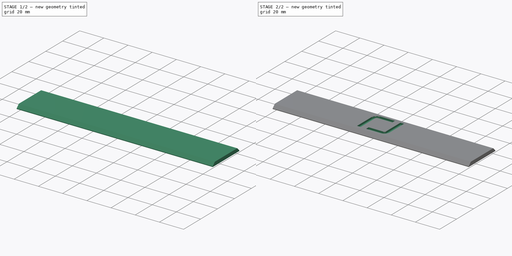
[diagram: build sequence overview — one tinted view per stage of 2, left to right]
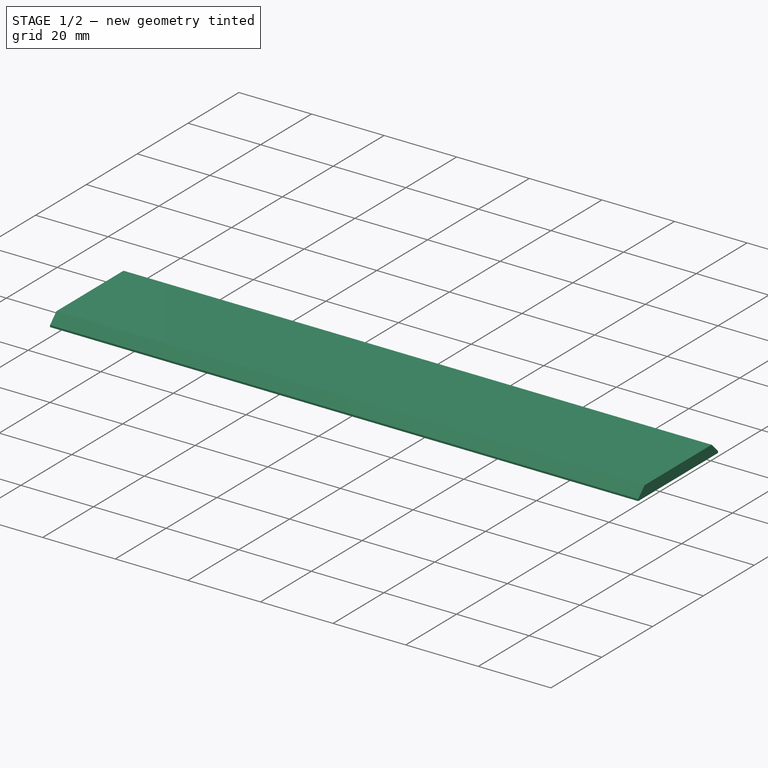
[diagram: stage 1 of 2 — iso view after this stage's code; geometry added in this stage tinted green]
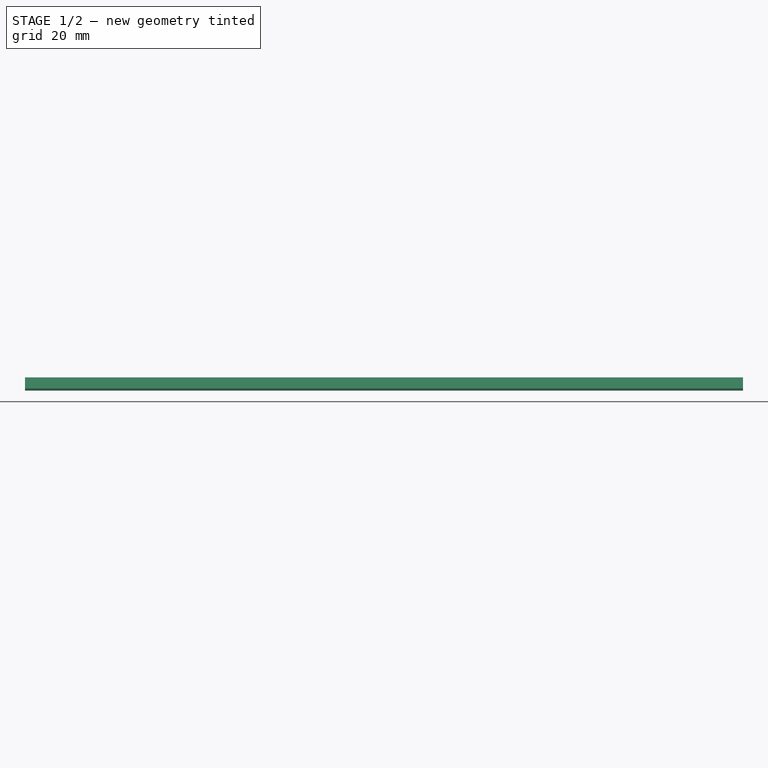
[diagram: stage 1 of 2 — front view after this stage's code; geometry added in this stage tinted green]
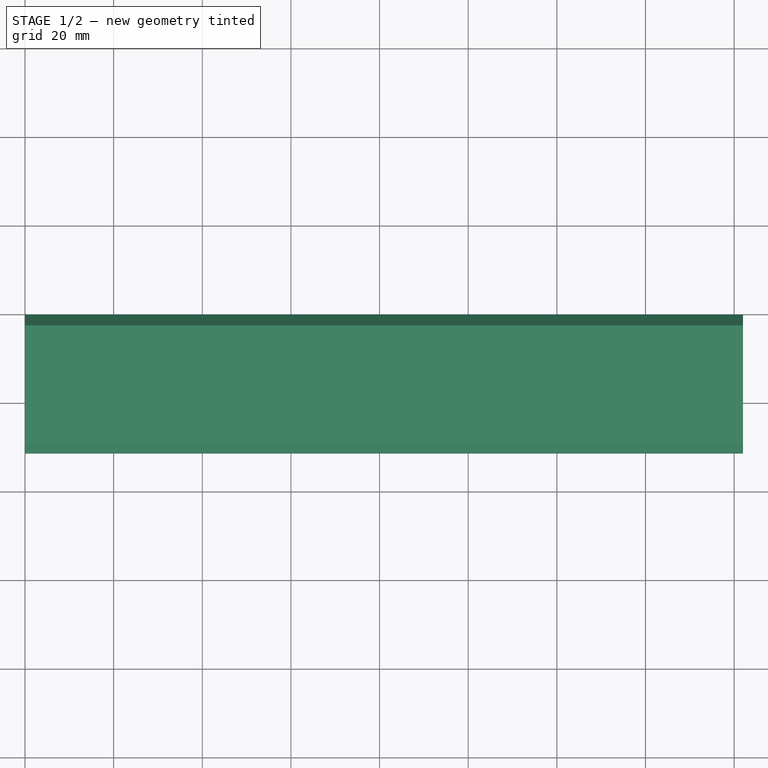
[diagram: stage 1 of 2 — top view after this stage's code; geometry added in this stage tinted green]
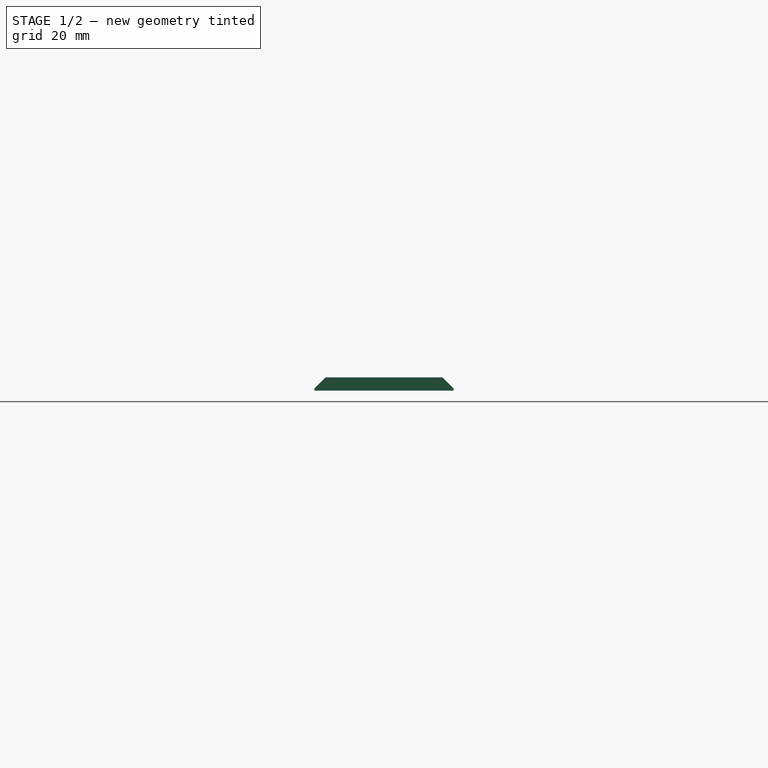
[diagram: stage 1 of 2 — right view after this stage's code; geometry added in this stage tinted green]
FCSTD DOCUMENT  (FreeCAD 0.20R29603 (Git))
Label: RJ
License: All rights reserved
LicenseURL: http://en.wikipedia.org/wiki/All_rights_reserved
objects: Part::Part2DObjectPython×2, PartDesign::Pocket×2, Spreadsheet::Sheet×1, Sketcher::SketchObject×1, PartDesign::Pad×1, PartDesign::Chamfer×1, PartDesign::Body×1, App::Part×1
note: 12 computed .brp shape members not serialized (recipe doc carries the construction recipe); baked Part::Feature solids carry a one-line shape summary decoded from their .brp

FEATURE [Spreadsheet::Sheet] Spreadsheet  label="params"
  cells = A1=length; B1(length)=162; A2=width; B2(width)=31.4; A3=height; B3(height)=3; A4=chamfer; B4(chamfer)=2.5
FEATURE [Sketcher::SketchObject] Sketch
  FullyConstrained = true
  MapMode = 2
  expr: Constraints[8] = <<params>>.length
  expr: Constraints[9] = <<params>>.width
  sketch-geometry (4):
    g0: LineSegment StartX=0 StartY=0 StartZ=0 EndX=162 EndY=0 EndZ=0
    g1: LineSegment StartX=162 StartY=0 StartZ=0 EndX=162 EndY=-31.4 EndZ=0
    g2: LineSegment StartX=162 StartY=-31.4 StartZ=0 EndX=0 EndY=-31.4 EndZ=0
    g3: LineSegment StartX=0 StartY=-31.4 StartZ=0 EndX=0 EndY=0 EndZ=0
  constraints (11):
    c: Coincident(g0,g1)
    c: Coincident(g1,g2)
    c: Coincident(g2,g3)
    c: Coincident(g3,g0)
    c: Horizontal(g0)
    c: Horizontal(g2)
    c: Vertical(g1)
    c: Vertical(g3)
    c: DistanceX(g0,g0) = 162
    c: DistanceY(g1,g0) = 31.4
    c: Coincident(g0,g-1)
FEATURE [PartDesign::Pad] Pad
  Direction = (0,0,1)
  Length = 3
  Length2 = 10
  Profile = -> Sketch
  ReferenceAxis = -> Sketch [N_Axis]
  Type = 0
  expr: Length = <<params>>.height
FEATURE [PartDesign::Chamfer] Chamfer
  Angle = 45
  Base = -> Pad [Edge10,Edge4]
  BaseFeature = -> Pad
  ChamferType = 0
  FlipDirection = false
  Size = 2.5
  Size2 = 1
  SupportTransform = false
  UseAllEdges = false
  expr: Size = <<params>>.chamfer
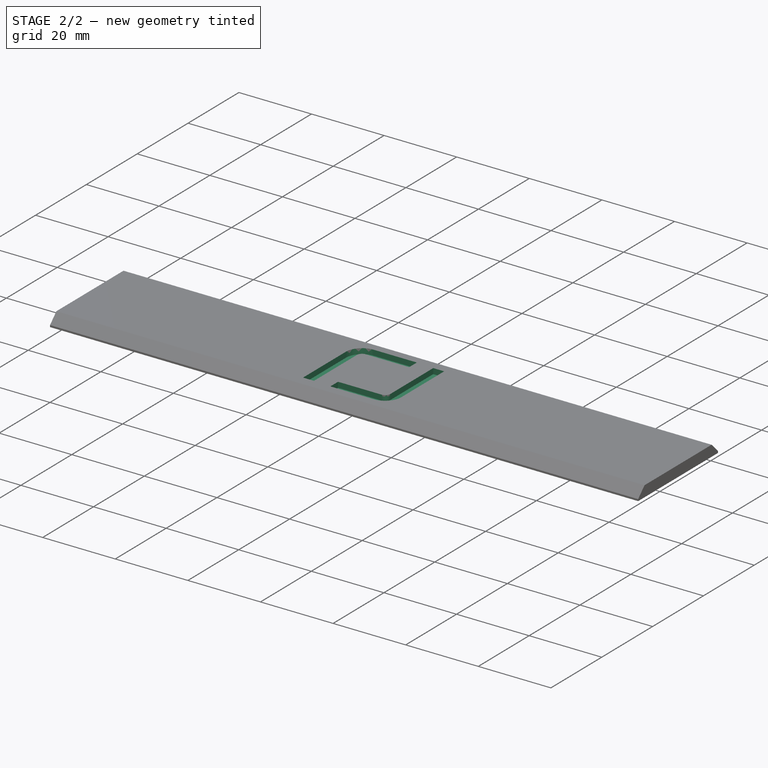
[diagram: stage 2 of 2 — iso view after this stage's code; geometry added in this stage tinted green]
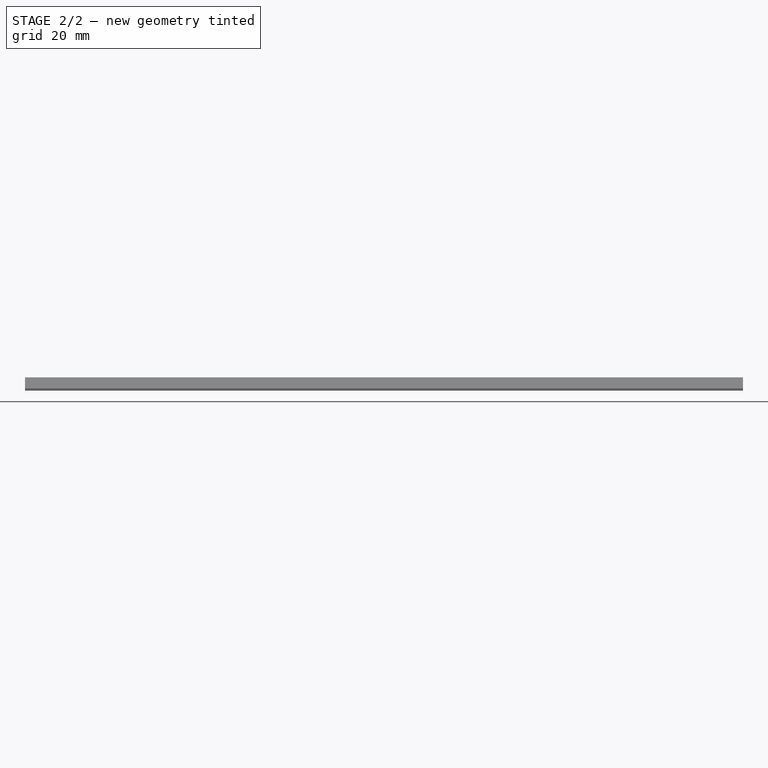
[diagram: stage 2 of 2 — front view after this stage's code; geometry added in this stage tinted green]
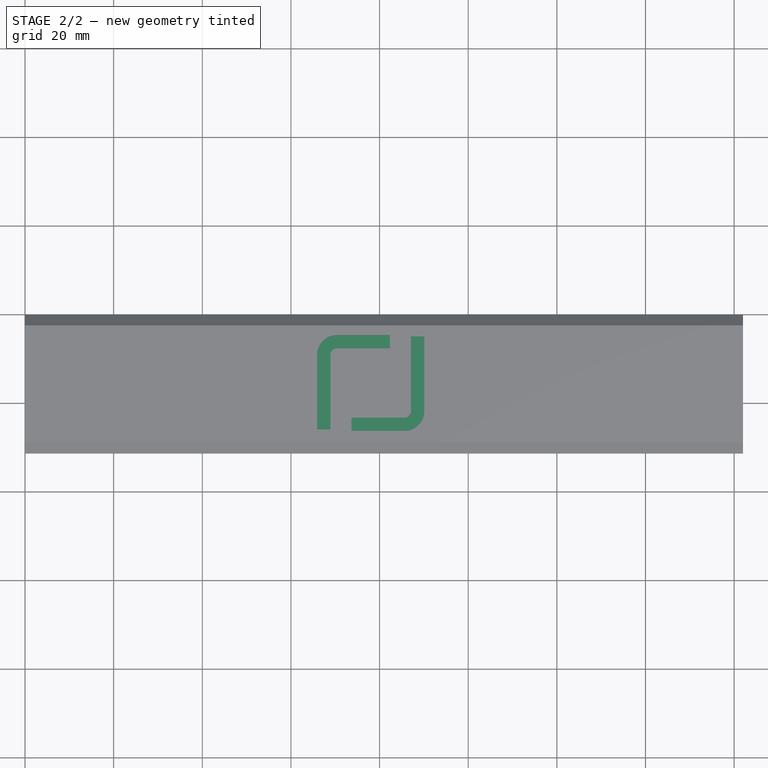
[diagram: stage 2 of 2 — top view after this stage's code; geometry added in this stage tinted green]
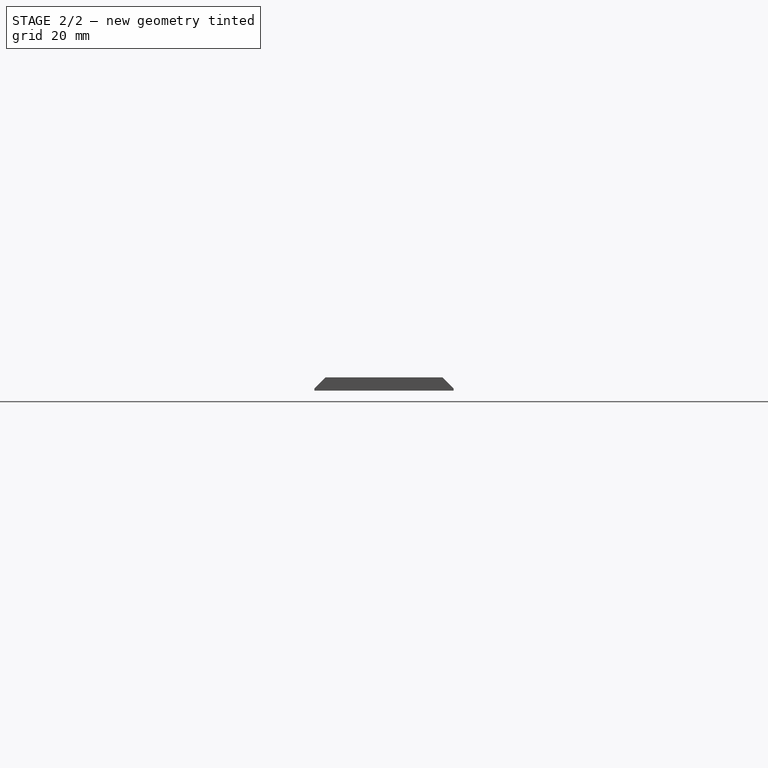
[diagram: stage 2 of 2 — right view after this stage's code; geometry added in this stage tinted green]
FEATURE [Part::Part2DObjectPython] ShapeString  # Draft 2D object (typed FeaturePython)
  FontFile = <userpath>/3D_Printing/Fonts/Orbitron/Orbitron-VariableFont_wght.ttf
  MakeFace = true
  Placement = pos=(64,-26,3) rot=(0,0,1;0rad)
  Size = 15
  String = r
  Tracking = 0
FEATURE [Part::Part2DObjectPython] ShapeString001  # Draft 2D object (typed FeaturePython)
  FontFile = <userpath>/3D_Printing/Fonts/Orbitron/Orbitron-VariableFont_wght.ttf
  MakeFace = true
  Placement = pos=(92,-5,3) rot=(0,0,1;3.14159rad)
  Size = 15
  String = r
  Tracking = 0
FEATURE [PartDesign::Pocket] Pocket
  BaseFeature = -> Chamfer
  Direction = (0,0,-1)
  Length = 1.5
  Length2 = 5
  Profile = -> ShapeString
  ReferenceAxis = -> ShapeString [N_Axis]
  Type = 0
FEATURE [PartDesign::Pocket] Pocket001
  BaseFeature = -> Pocket
  Direction = (0,0,-1)
  Length = 1.5
  Length2 = 5
  Profile = -> ShapeString001
  ReferenceAxis = -> ShapeString001 [N_Axis]
  Type = 0
FEATURE [PartDesign::Body] Body
  Group = -> [Sketch,Pad,Chamfer,ShapeString,ShapeString001,Pocket,Pocket001]
  Origin = -> Origin001
  Tip = -> Pocket001
FEATURE [App::Part] Part  label="Strip"
  Group = -> [Body]
  Origin = -> Origin
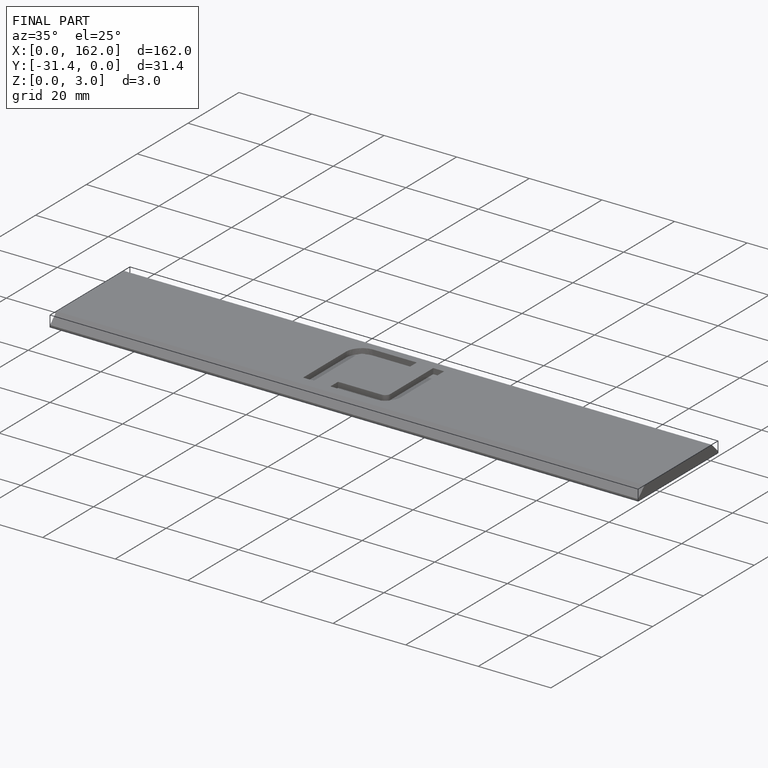
[diagram: finished part — iso view with bounding-box wireframe]
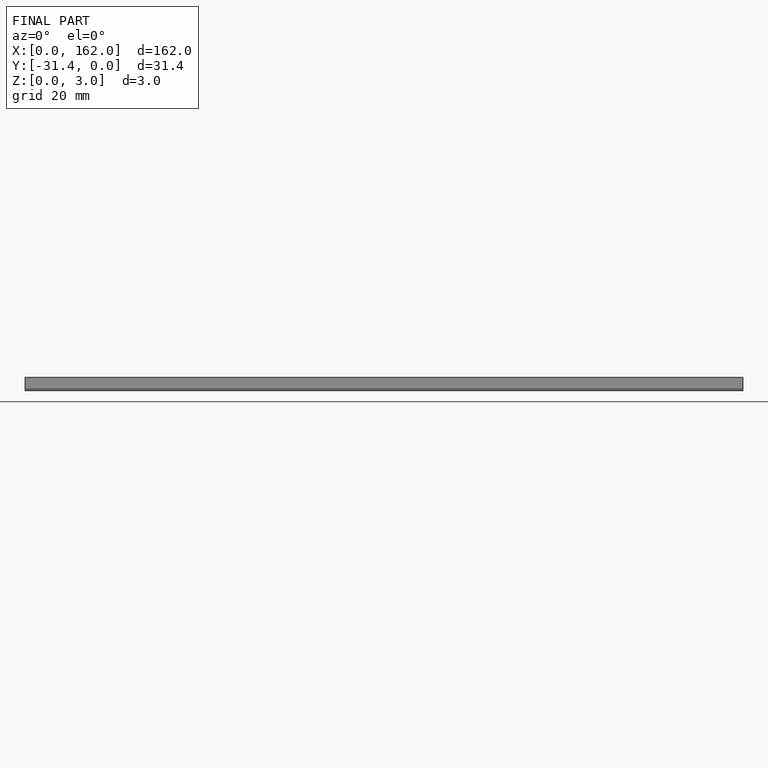
[diagram: finished part — front view with bounding-box wireframe]
